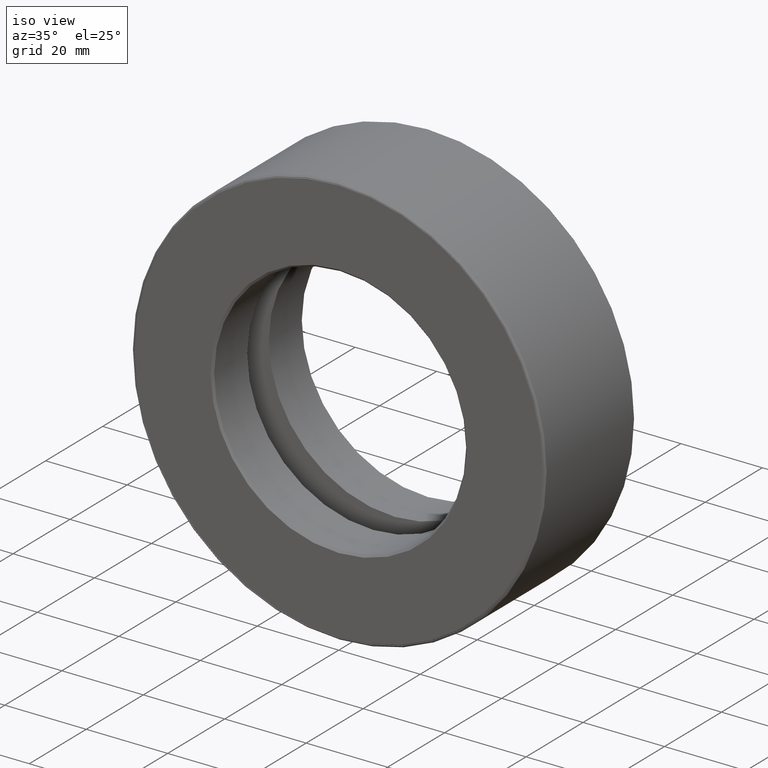
[diagram: clean part render]
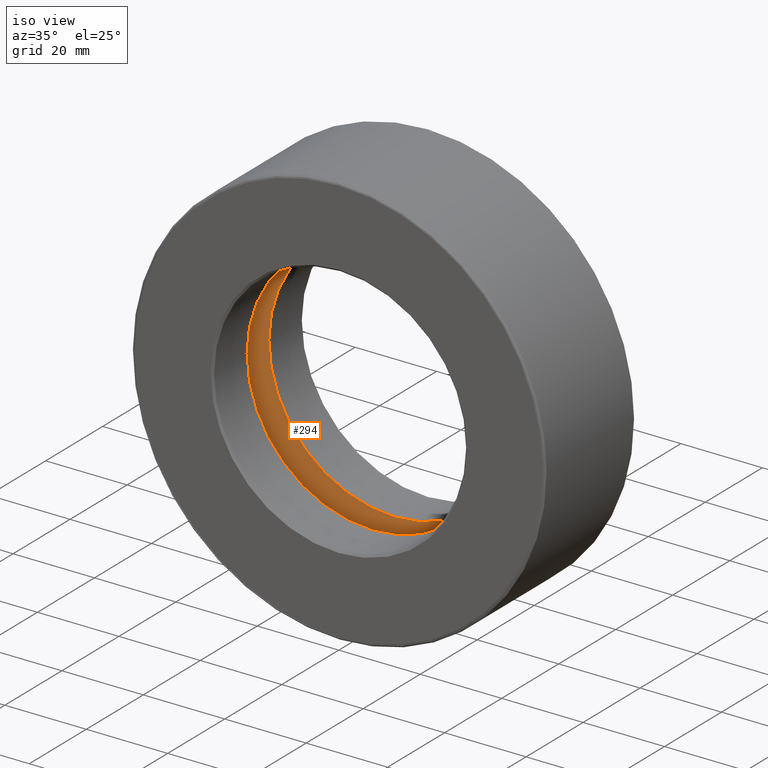
[diagram: same view with one face highlighted and labeled with its STEP entity id]
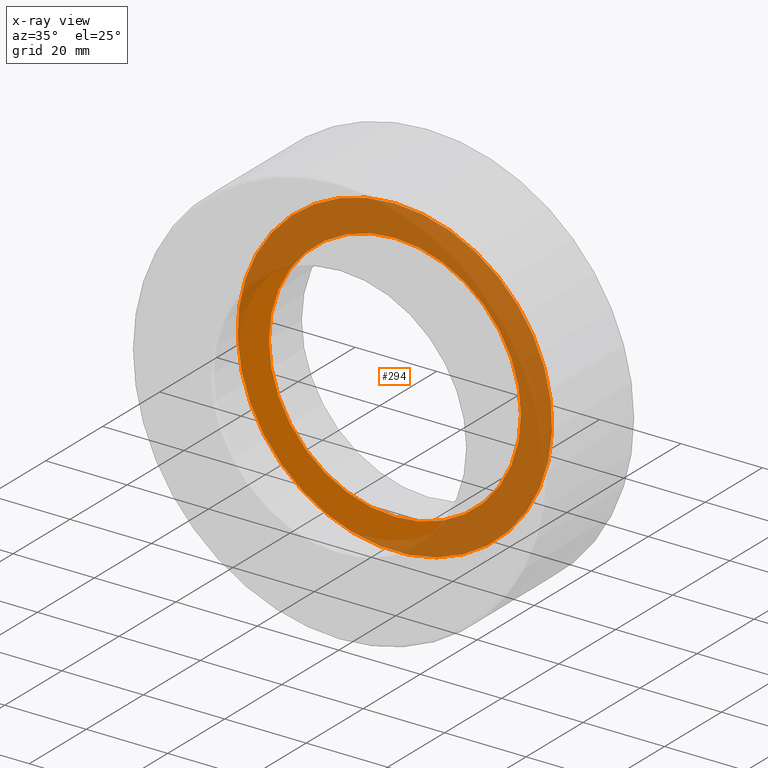
[diagram: x-ray of the same camera — body ghosted, the highlighted face saturated]
A machine part, iso view. The second image highlights one B-rep face of the part: STEP entity #294.
The next image is the same camera in x-ray: the body ghosted, the highlighted face saturated — about 68% of this face is hidden behind the body in this view.
In plain terms, the highlighted planar face has unit normal (0, -1, 0).
Its self-contained STEP definition (entity closure, byte-faithful):
#5 = AXIS2_PLACEMENT_3D ( 'NONE', #183, #466, #86 ) ;
#15 = FACE_OUTER_BOUND ( 'NONE', #377, .T. ) ;
#21 = CARTESIAN_POINT ( 'NONE',  ( 0.0000000000000000000, 0.7749999999999999100, 0.0000000000000000000 ) ) ;
#74 = DIRECTION ( 'NONE',  ( 0.0000000000000000000, -0.0000000000000000000, -1.000000000000000000 ) ) ;
#86 = DIRECTION ( 'NONE',  ( 0.0000000000000000000, 0.0000000000000000000, 1.000000000000000000 ) ) ;
#119 = CARTESIAN_POINT ( 'NONE',  ( 0.0000000000000000000, 0.7749999999999999100, 0.0000000000000000000 ) ) ;
#140 = ORIENTED_EDGE ( 'NONE', *, *, #542, .T. ) ;
#143 = CIRCLE ( 'NONE', #604, 1.520999999999999900 ) ;
#160 = CARTESIAN_POINT ( 'NONE',  ( 0.0000000000000000000, 0.7749999999999999100, 1.520999999999999900 ) ) ;
#161 = DIRECTION ( 'NONE',  ( -0.0000000000000000000, 1.000000000000000000, -0.0000000000000000000 ) ) ;
#163 = PLANE ( 'NONE',  #297 ) ;
#181 = VERTEX_POINT ( 'NONE', #440 ) ;
#183 = CARTESIAN_POINT ( 'NONE',  ( 0.0000000000000000000, 0.7749999999999999100, 0.0000000000000000000 ) ) ;
#258 = DIRECTION ( 'NONE',  ( 0.0000000000000000000, -1.000000000000000000, 0.0000000000000000000 ) ) ;
#280 = EDGE_CURVE ( 'NONE', #302, #302, #143, .T. ) ;
#294 = ADVANCED_FACE ( 'NONE', ( #422, #15 ), #163, .T. ) ;
#297 = AXIS2_PLACEMENT_3D ( 'NONE', #119, #258, #74 ) ;
#302 = VERTEX_POINT ( 'NONE', #160 ) ;
#325 = ORIENTED_EDGE ( 'NONE', *, *, #280, .F. ) ;
#377 = EDGE_LOOP ( 'NONE', ( #325 ) ) ;
#405 = DIRECTION ( 'NONE',  ( 0.0000000000000000000, 0.0000000000000000000, 1.000000000000000000 ) ) ;
#422 = FACE_BOUND ( 'NONE', #502, .T. ) ;
#440 = CARTESIAN_POINT ( 'NONE',  ( 0.0000000000000000000, 0.7749999999999999100, 1.218750000000000000 ) ) ;
#466 = DIRECTION ( 'NONE',  ( -0.0000000000000000000, 1.000000000000000000, -0.0000000000000000000 ) ) ;
#470 = CIRCLE ( 'NONE', #5, 1.218750000000000000 ) ;
#502 = EDGE_LOOP ( 'NONE', ( #140 ) ) ;
#542 = EDGE_CURVE ( 'NONE', #181, #181, #470, .T. ) ;
#604 = AXIS2_PLACEMENT_3D ( 'NONE', #21, #161, #405 ) ;